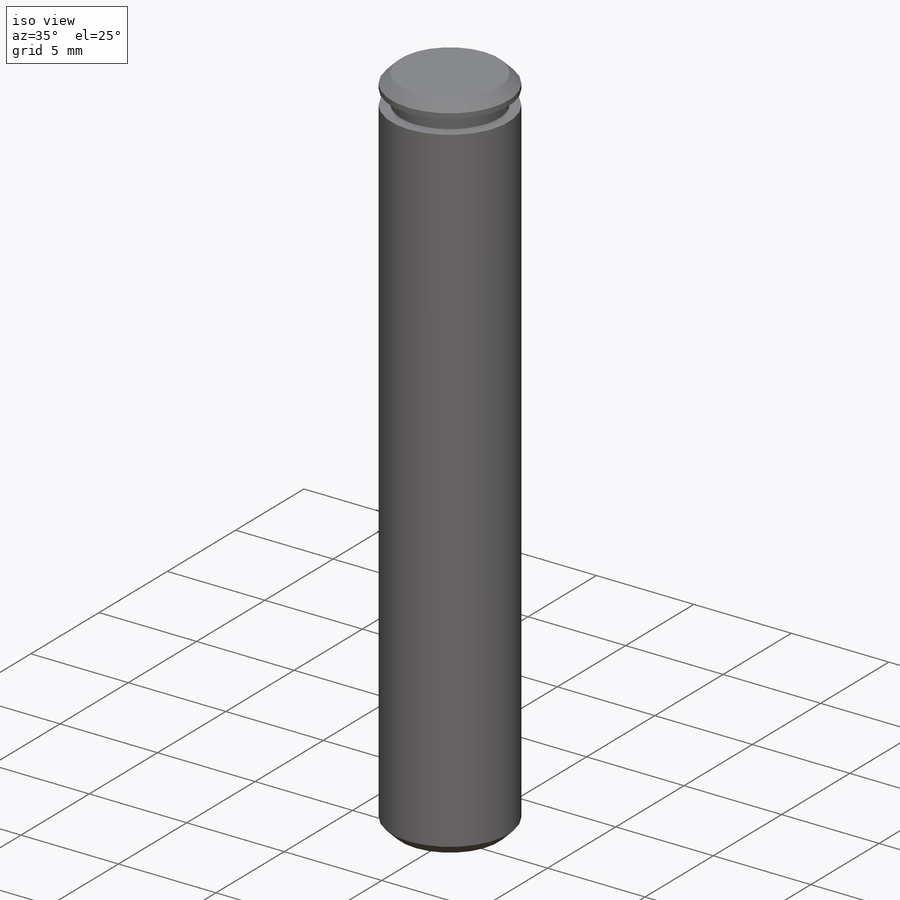
[diagram: iso view]
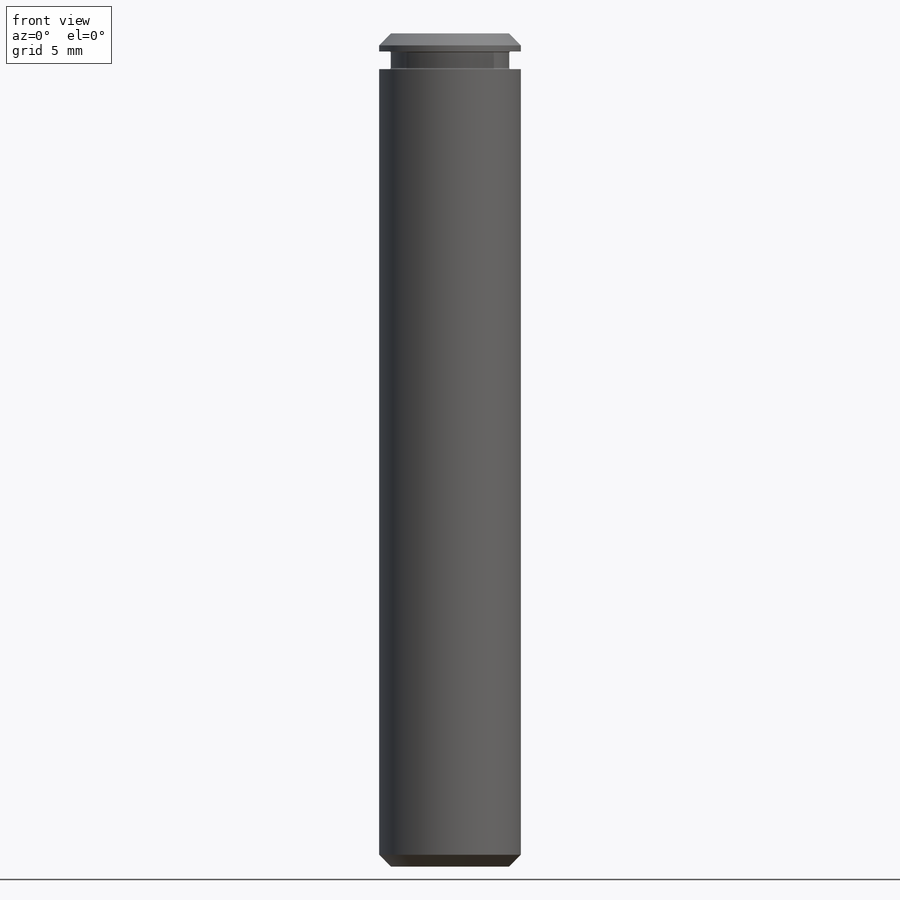
[diagram: front view]
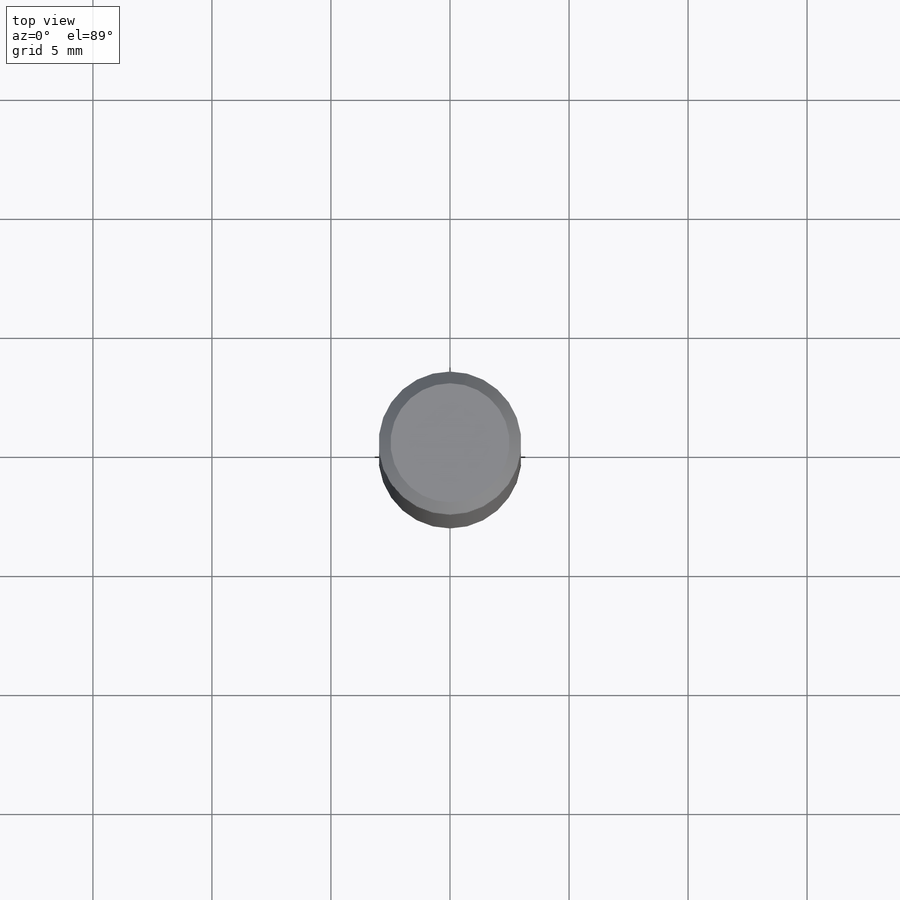
[diagram: top view]
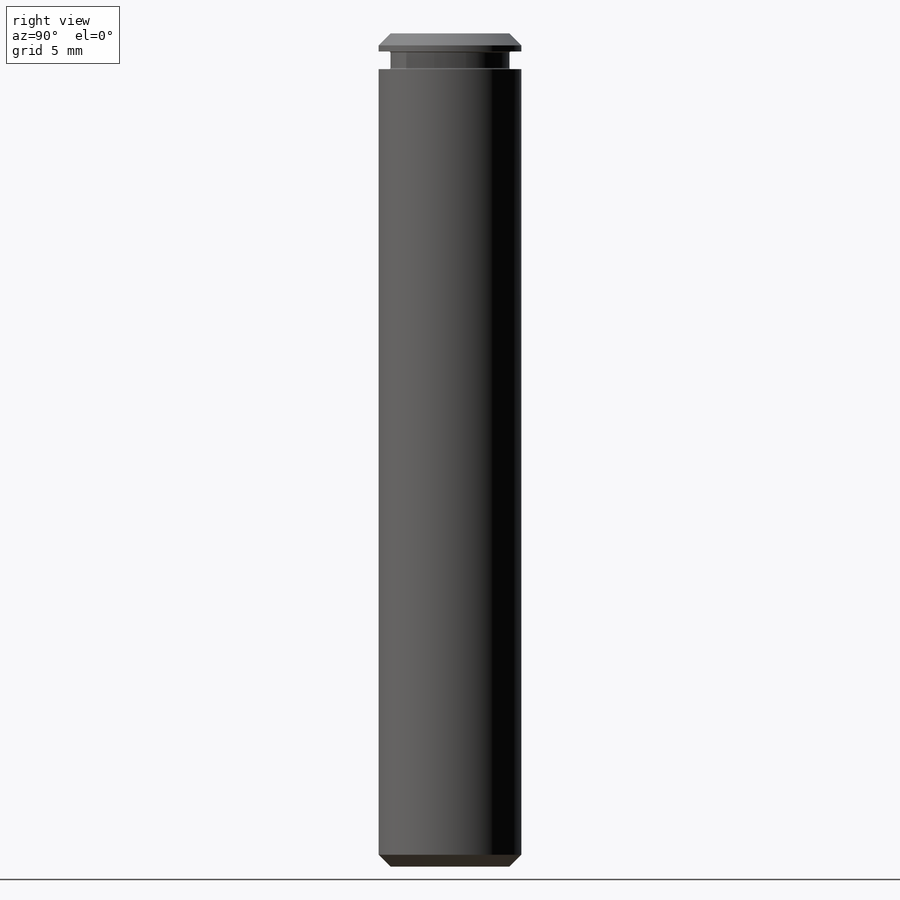
[diagram: right view]
SOLIDWORKS PART (.sldprt)
format: sldprt  version: not decoded by parser v0  size: 166,400 bytes
history: native  units: mm
features: sketch x2, revolve x2, cut_revolve x2, material x1, plane x1, chamfer x1 (+12 scaffold rows collapsed)
feature tree (21):
  scaffold x12  (default folders/planes/origin — collapsed)
  material  "1060 Alloy"
  sketch  "Sketch1"  dims[c1.D1=~22.590258mm c2.D1=5.0mm c2.D2=35.0mm c3.D1=6.0mm]
  revolve  "Revolve1"  Angle=360deg
  plane  "Plane1"
  sketch  "Sketch3"  dims[c1.D1=0.05mm c1.D2=0.05mm c1.D3=7.6mm c1.D4=2.5mm c1.D5=0.74mm c1.D6=0.64mm c2.D3=1.5mm]
  cut_revolve  "Groove for DIN 471 - 4 x 0.4, Circlip for shafts - normal1"  Angle=0deg CurrentVersion=0deg EditFunction=0deg Type=0deg SubType=0deg Application=0deg
  revolve  "CimRetRingSettings6.13727"  Angle=0deg STANDARD=0deg TYPE=0deg SIZE=0deg GROOVE_LOCATION=0deg
  cut_revolve  "CimRetRingSettings6.1"  Angle=0deg STANDARD=0deg TYPE=0deg SIZE=0deg GROOVE_LOCATION=0deg
  chamfer  "Chamfer1"  Distance=0.5mm
decode coverage: 7 of 7 modeling features carry decoded parameters
note: ~ marks probable driven/reference dimensions
note: suppression state not decoded; provenance and decode notes live in map.json
